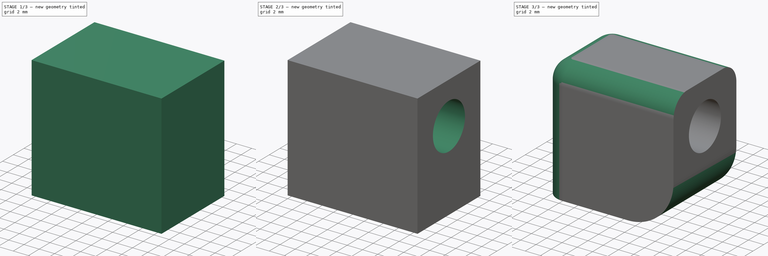
[diagram: build sequence overview — one tinted view per stage of 3, left to right]
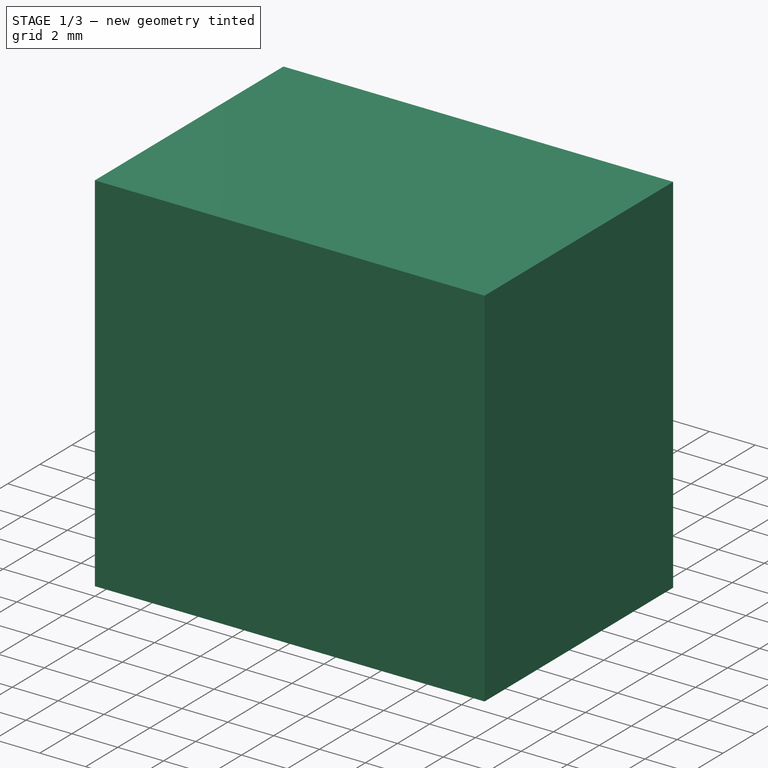
[diagram: stage 1 of 3 — iso view after this stage's code; geometry added in this stage tinted green]
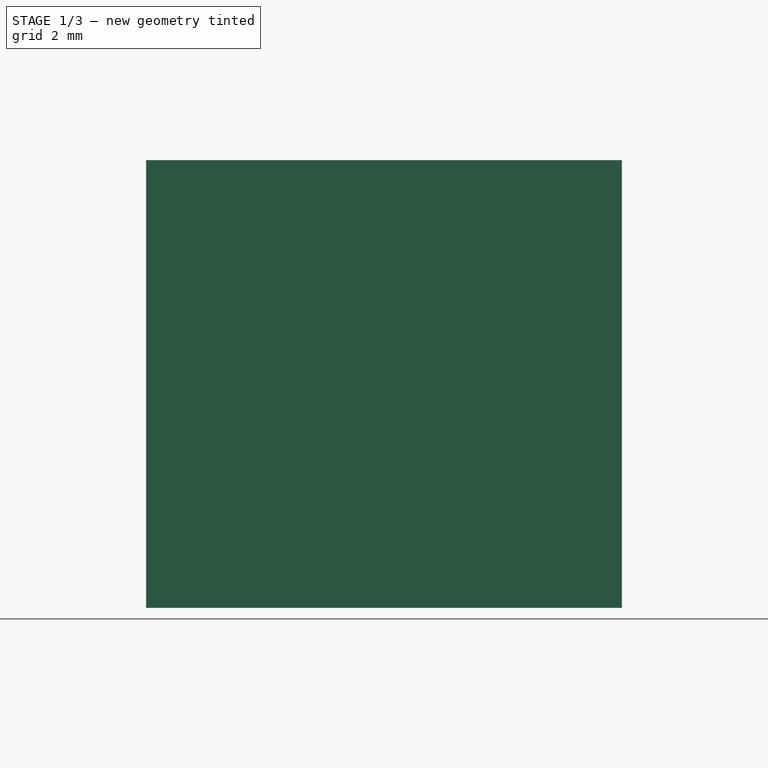
[diagram: stage 1 of 3 — front view after this stage's code; geometry added in this stage tinted green]
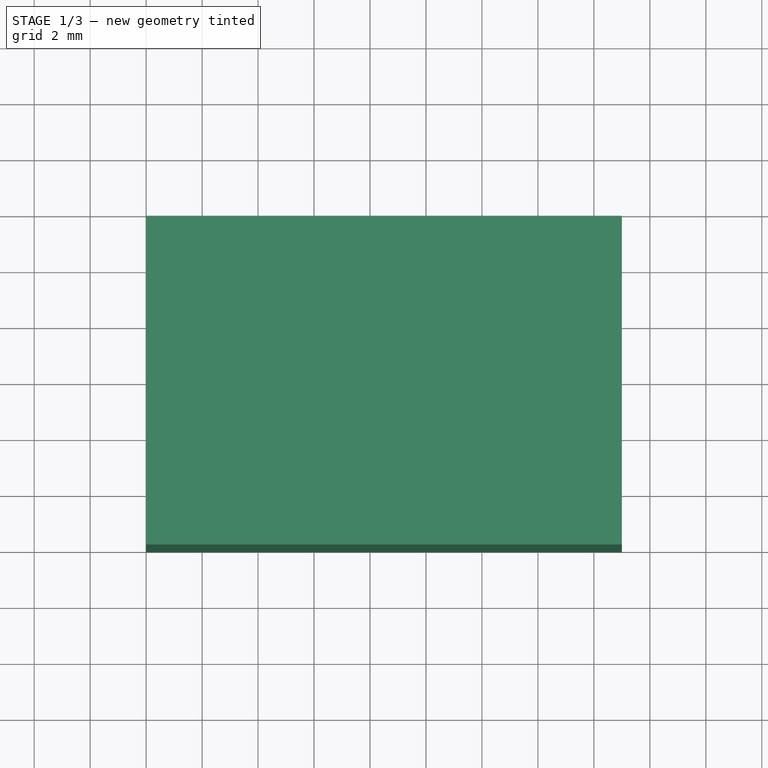
[diagram: stage 1 of 3 — top view after this stage's code; geometry added in this stage tinted green]
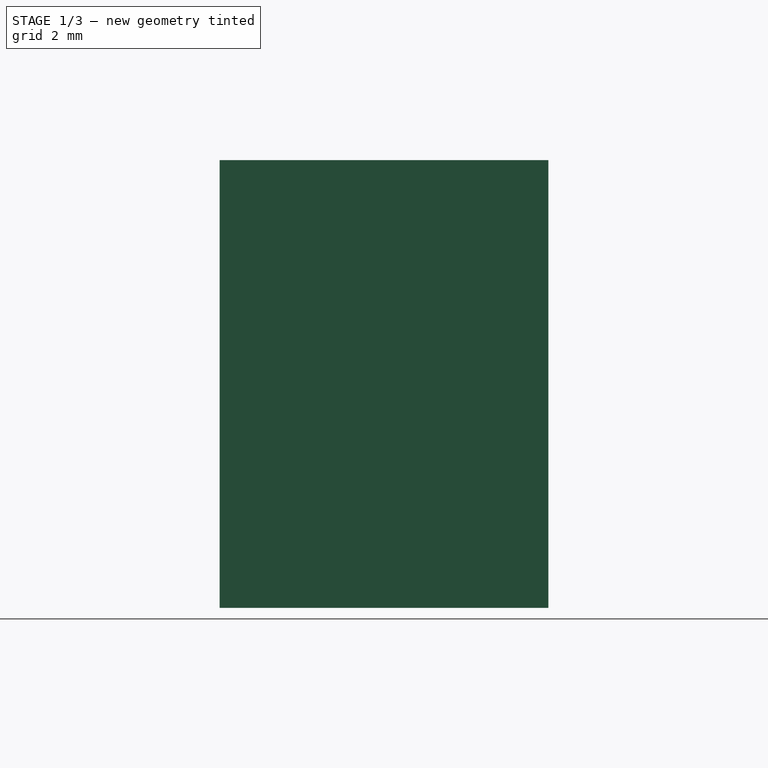
[diagram: stage 1 of 3 — right view after this stage's code; geometry added in this stage tinted green]
FCSTD DOCUMENT  (FreeCAD 0.19R)
Label: vacuum-tube-fitting
License: All rights reserved
LicenseURL: http://en.wikipedia.org/wiki/All_rights_reserved
objects: Sketcher::SketchObject×3, PartDesign::Pocket×2, PartDesign::Fillet×2, PartDesign::Pad×1, PartDesign::Body×1
note: 14 computed .brp shape members not serialized (recipe doc carries the construction recipe); baked Part::Feature solids carry a one-line shape summary decoded from their .brp

FEATURE [Sketcher::SketchObject] Sketch
  FullyConstrained = true
  MapMode = 5
  Support = -> [XY_Plane]
  sketch-geometry (4):
    g0: LineSegment StartX=0 StartY=0 StartZ=0 EndX=17 EndY=0 EndZ=0
    g1: LineSegment StartX=17 StartY=0 StartZ=0 EndX=17 EndY=11.75 EndZ=0
    g2: LineSegment StartX=17 StartY=11.75 StartZ=0 EndX=0 EndY=11.75 EndZ=0
    g3: LineSegment StartX=0 StartY=11.75 StartZ=0 EndX=0 EndY=0 EndZ=0
  constraints (11):
    c: Coincident(g0,g1)
    c: Coincident(g1,g2)
    c: Coincident(g2,g3)
    c: Coincident(g3,g0)
    c: Horizontal(g0)
    c: Horizontal(g2)
    c: Vertical(g1)
    c: Vertical(g3)
    c: Coincident(g0,g-1)
    c: DistanceY(g3,g3) = 11.75
    c: DistanceX(g2,g2) = 17
FEATURE [PartDesign::Pad] Pad
  Direction = (1,1,1)
  Length = 16
  Length2 = 100
  Profile = -> Sketch
  Type = 0
FEATURE [Sketcher::SketchObject] Sketch001
  FullyConstrained = true
  MapMode = 5
  Placement = pos=(0,0,0) rot=(1,0,0;3.14159rad)
  Support = -> [Pad]
  sketch-geometry (3):
    g0: Circle CenterX=5.875 CenterY=-5.875 CenterZ=0 NormalX=0 NormalY=0 NormalZ=1 AngleXU=0 Radius=3.375
    g1: LineSegment StartX=5.875 StartY=-9.25 StartZ=0 EndX=5.875 EndY=-2.5 EndZ=0
    g2: LineSegment StartX=2.5 StartY=-5.875 StartZ=0 EndX=9.25 EndY=-5.875 EndZ=0
  constraints (11):
    c: Diameter(g0) = 6.75
    c: PointOnObject(g1,g0)
    c: PointOnObject(g1,g0)
    c: Vertical(g1)
    c: PointOnObject(g0,g1)
    c: PointOnObject(g2,g0)
    c: PointOnObject(g2,g0)
    c: Horizontal(g2)
    c: PointOnObject(g0,g2)
    c: DistanceY(g1,g-1) = 2.5
    c: DistanceX(g-1,g2) = 2.5
FEATURE [PartDesign::Pocket] Pocket
  BaseFeature = -> Pad
  Length = 13.5
  Length2 = 100
  Profile = -> Sketch001
  Type = 0
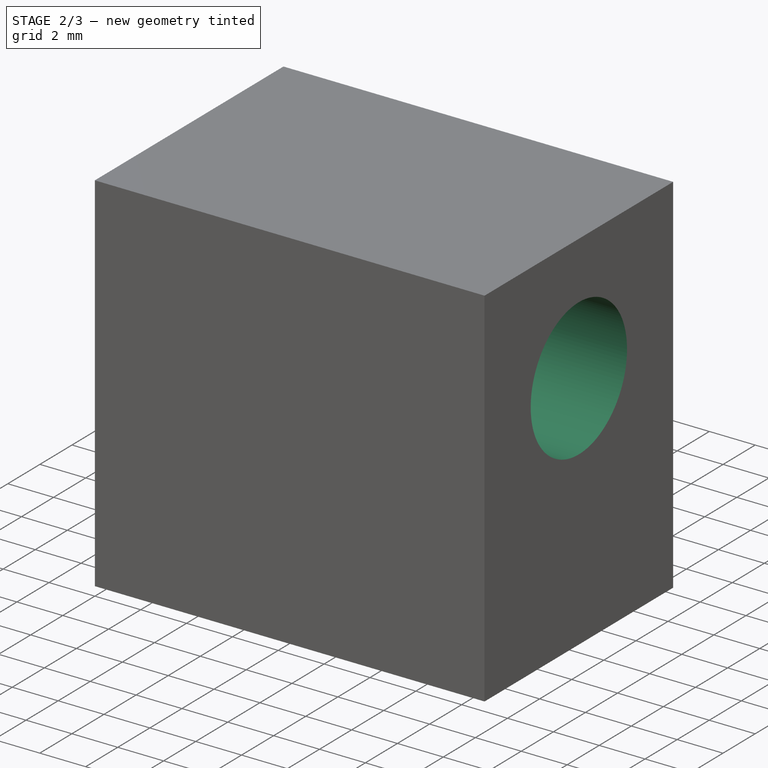
[diagram: stage 2 of 3 — iso view after this stage's code; geometry added in this stage tinted green]
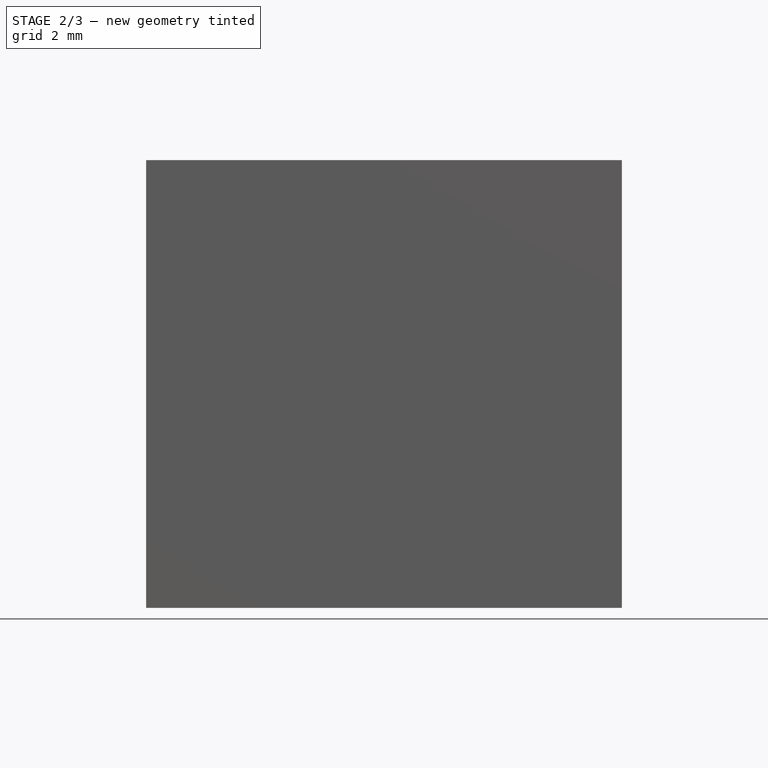
[diagram: stage 2 of 3 — front view after this stage's code; geometry added in this stage tinted green]
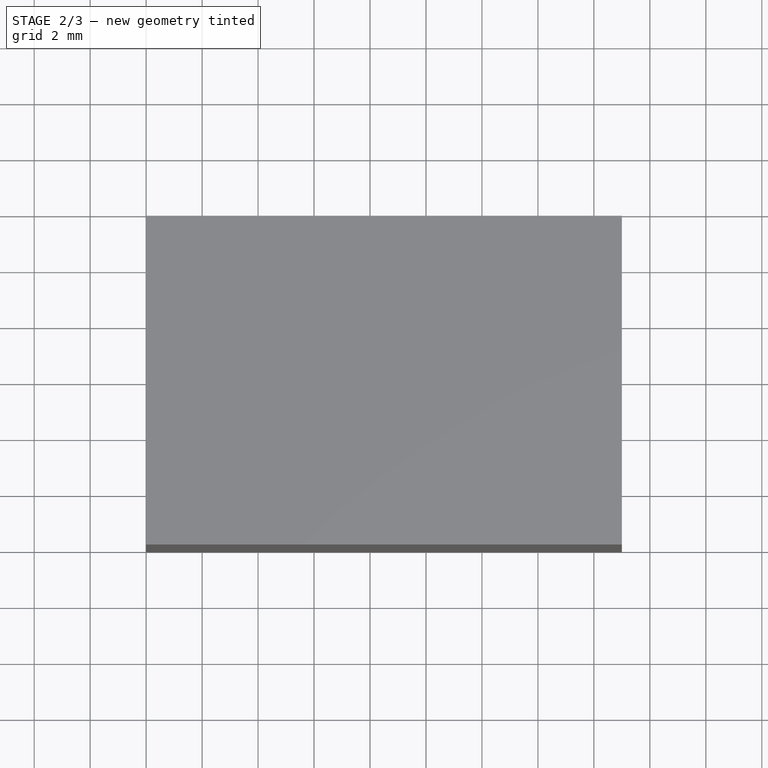
[diagram: stage 2 of 3 — top view after this stage's code; geometry added in this stage tinted green]
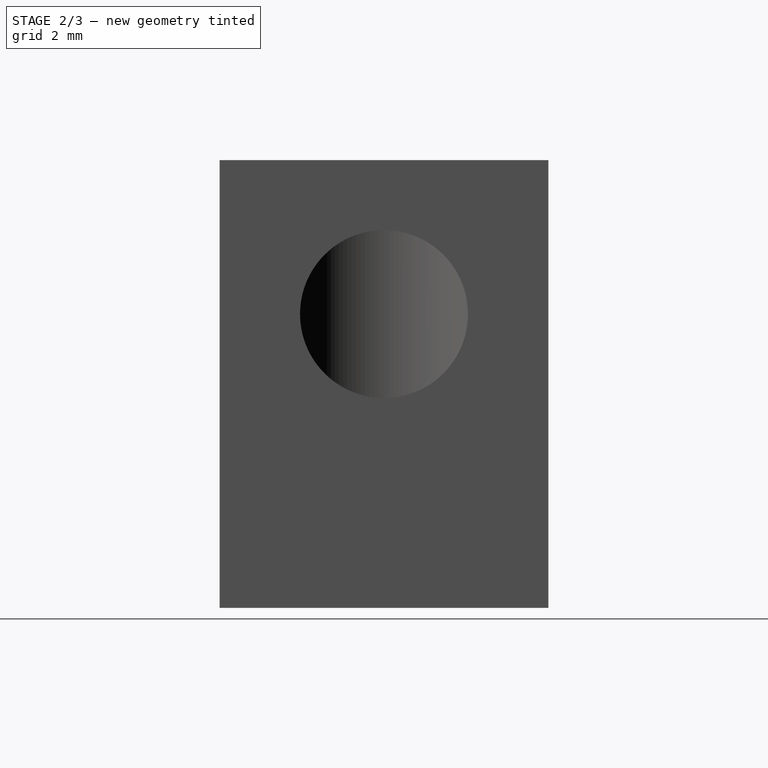
[diagram: stage 2 of 3 — right view after this stage's code; geometry added in this stage tinted green]
FEATURE [Sketcher::SketchObject] Sketch002
  FullyConstrained = true
  MapMode = 5
  Placement = pos=(17,0,0) rot=(0.57735,0.57735,0.57735;2.0944rad)
  Support = -> [Pocket]
  sketch-geometry (5):
    g0: Circle CenterX=5.875 CenterY=10.5 CenterZ=0 NormalX=0 NormalY=0 NormalZ=1 AngleXU=0 Radius=3
    g1: LineSegment StartX=5.875 StartY=7.5 StartZ=0 EndX=5.875 EndY=13.5 EndZ=0
    g2: LineSegment StartX=0 StartY=16 StartZ=0 EndX=11.75 EndY=16 EndZ=0
    g3: GeomPoint X=5.875 Y=16 Z=0
    g4: LineSegment StartX=5.875 StartY=16 StartZ=0 EndX=5.875 EndY=13.5 EndZ=0
  constraints (14):
    c: PointOnObject(g1,g0)
    c: PointOnObject(g1,g0)
    c: Vertical(g1)
    c: PointOnObject(g0,g1)
    c: PointOnObject(g2,g-2)
    c: Horizontal(g2)
    c: DistanceY(g-1,g2) = 16
    c: DistanceX(g2,g2) = 11.75
    c: Symmetric(g2,g2,g3)
    c: Coincident(g4,g3)
    c: Coincident(g4,g1)
    c: Vertical(g4)
    c: DistanceY(g4,g4) = 2.5
    c: Diameter(g0) = 6
FEATURE [PartDesign::Pocket] Pocket001
  BaseFeature = -> Pocket
  Length = 10
  Length2 = 100
  Profile = -> Sketch002
  Type = 0
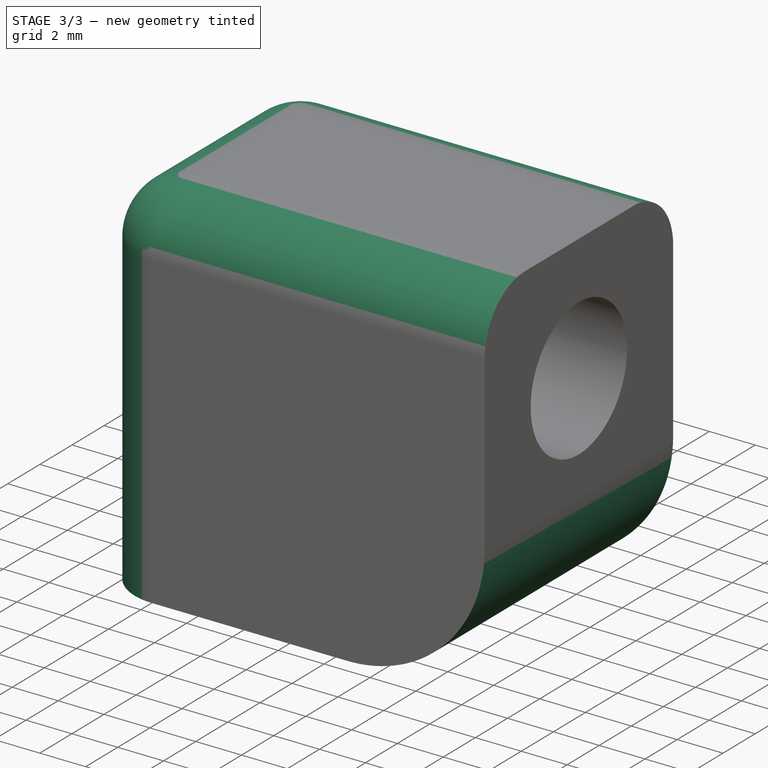
[diagram: stage 3 of 3 — iso view after this stage's code; geometry added in this stage tinted green]
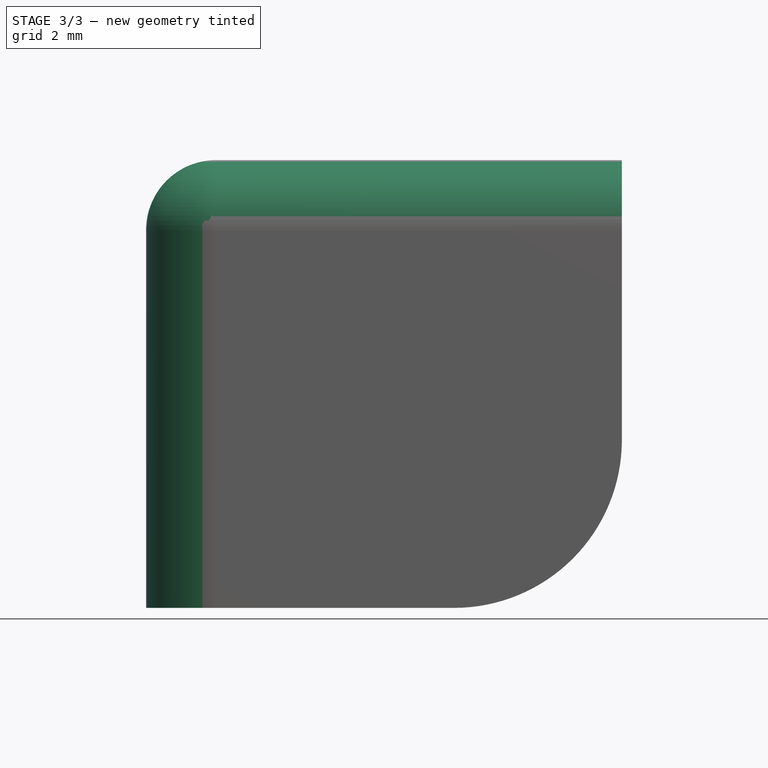
[diagram: stage 3 of 3 — front view after this stage's code; geometry added in this stage tinted green]
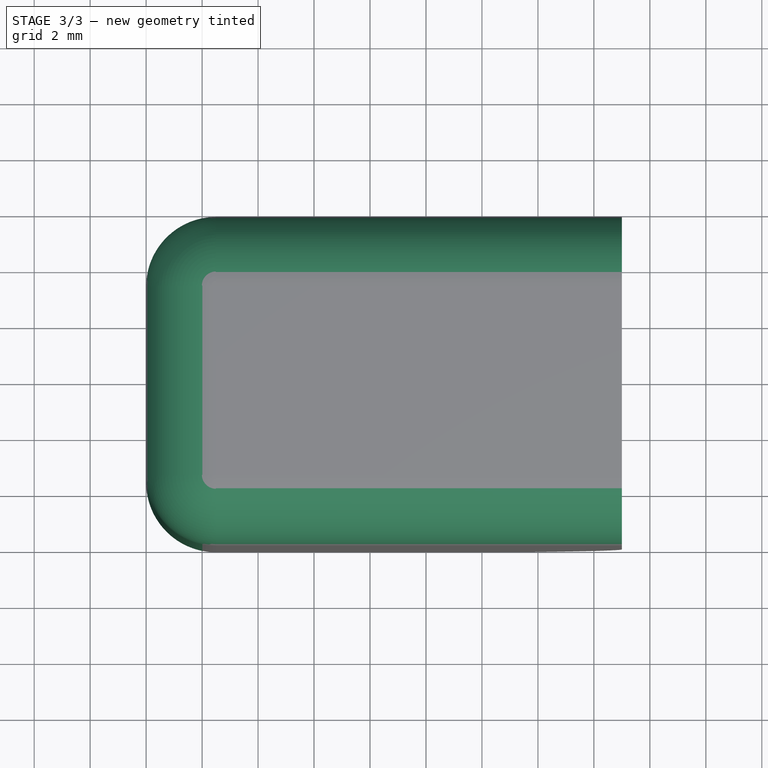
[diagram: stage 3 of 3 — top view after this stage's code; geometry added in this stage tinted green]
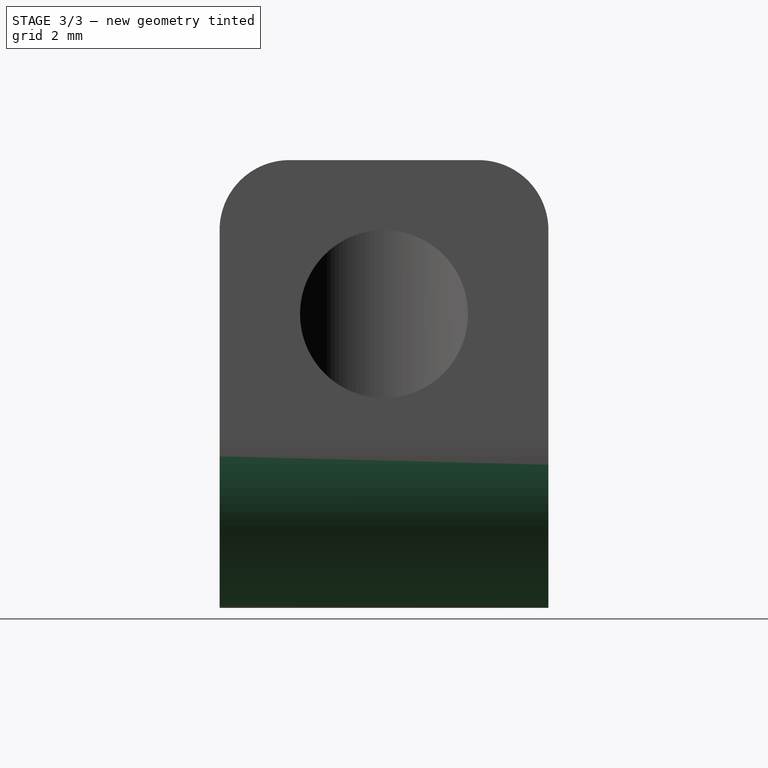
[diagram: stage 3 of 3 — right view after this stage's code; geometry added in this stage tinted green]
FEATURE [PartDesign::Fillet] Fillet
  Base = -> Pocket001 [Edge1,Edge5,Edge7,Edge14,Edge4]
  BaseFeature = -> Pocket001
  Radius = 2.5
  SupportTransform = false
FEATURE [PartDesign::Fillet] Fillet001
  Base = -> Fillet [Edge6]
  BaseFeature = -> Fillet
  Radius = 6
  SupportTransform = false
FEATURE [PartDesign::Body] Body
  Group = -> [Sketch,Pad,Sketch001,Pocket,Sketch002,Pocket001,Fillet,Fillet001]
  Origin = -> Origin
  Tip = -> Fillet001
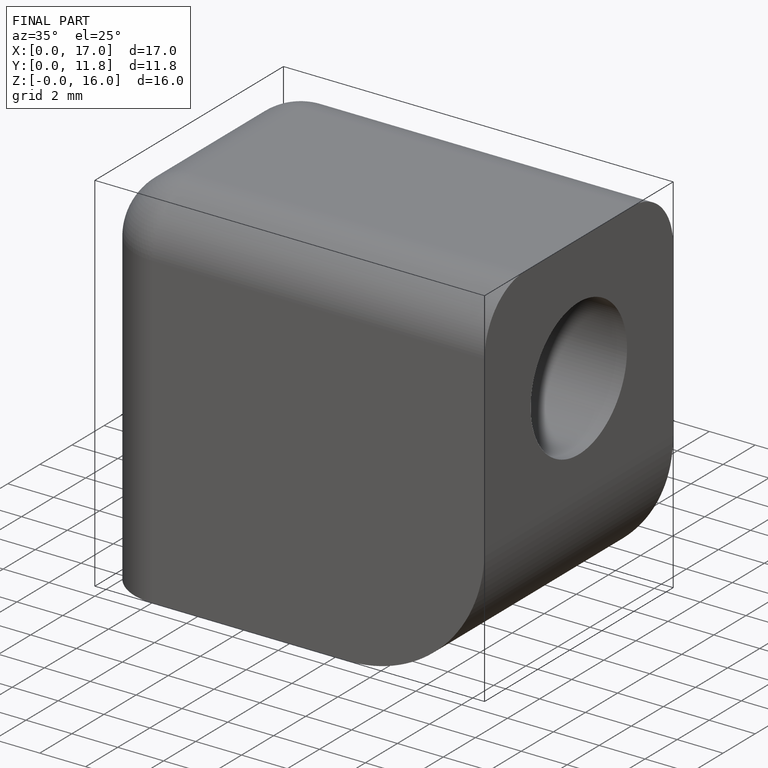
[diagram: finished part — iso view with bounding-box wireframe]
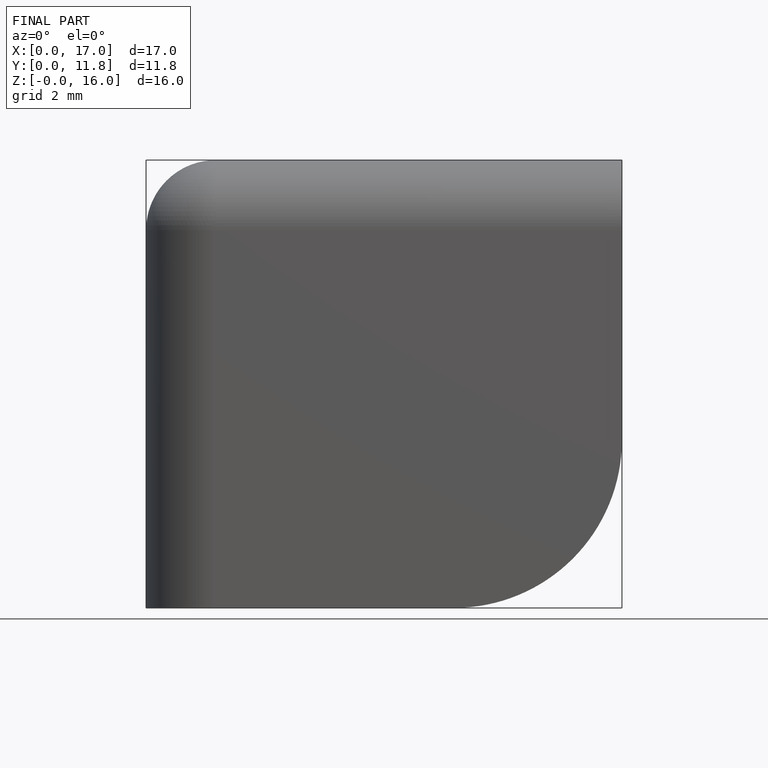
[diagram: finished part — front view with bounding-box wireframe]
